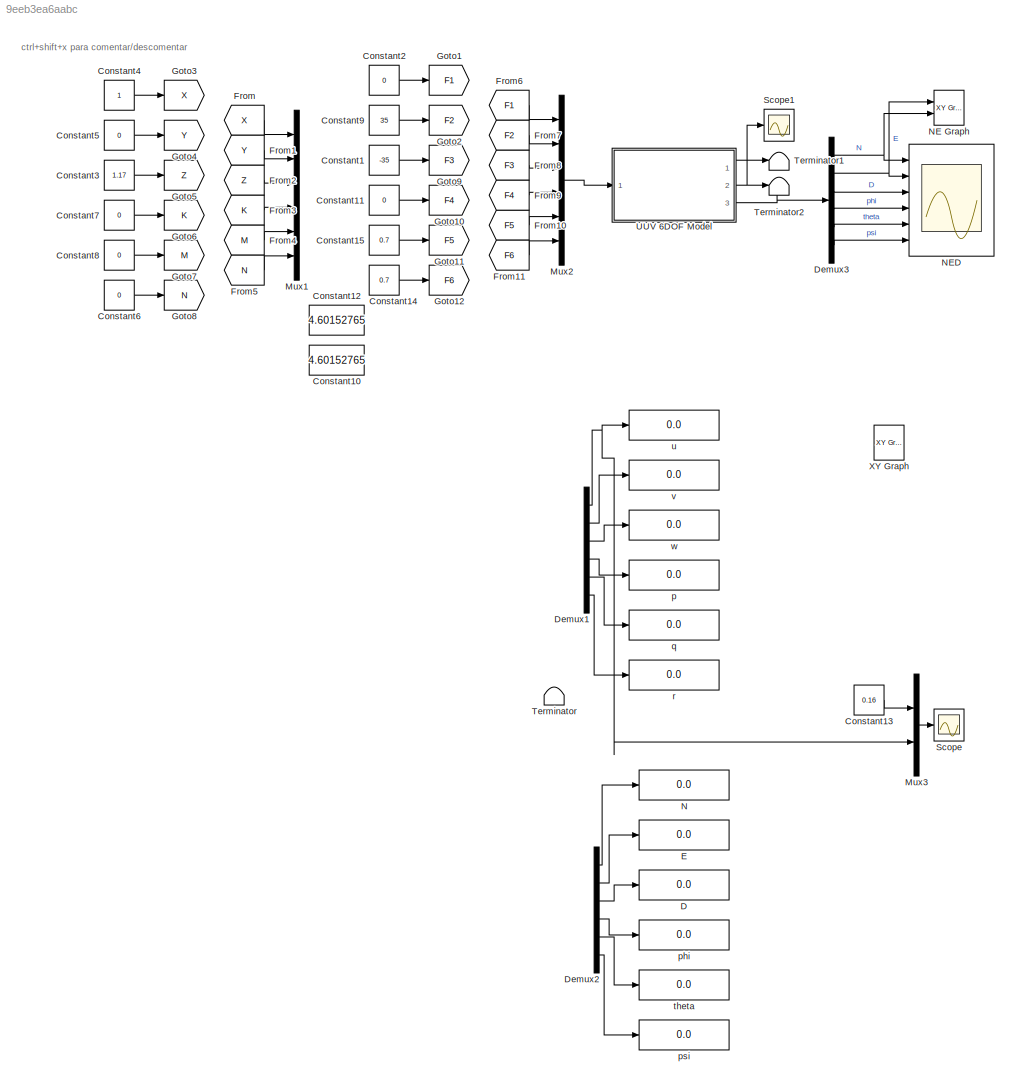
MODEL slx_9eeb3ea6aabc
KIND model
CONFIG AbsTol = auto
CONFIG EnableMultiTasking = off
CONFIG FixedStep = 0.01
CONFIG MaxStep = auto
CONFIG MinStep = auto
CONFIG RelTol = 1e-3
CONFIG SampleTimeConstraint = Unconstrained
CONFIG Solver = VariableStepAuto
CONFIG SolverName = VariableStepAuto
CONFIG StartTime = 0.0
CONFIG StopTime = 20
WORKSPACE source: mxarray member
WORKSPACE NED = [0 0 0 0 0 0]
WORKSPACE NED_dot = [0 0 0 0 0 0]
WORKSPACE a = [0 0 0 0 0 0]
WORKSPACE vel = [0 0 0 0 0 0]
BLOCK [Constant] Constant1
  Value = -35
BLOCK [Constant] Constant10
  Commented = on
  Value = 4.60152765
BLOCK [Constant] Constant11
  Value = 0
BLOCK [Constant] Constant12
  Commented = on
  Value = 4.60152765
BLOCK [Constant] Constant13
  Commented = on
  Value = 0.16
BLOCK [Constant] Constant14
  Value = 0.7
BLOCK [Constant] Constant15
  Value = 0.7
BLOCK [Constant] Constant2
  Value = 0
BLOCK [Constant] Constant3
  Commented = on
  Value = 1.17
BLOCK [Constant] Constant4
  Commented = on
BLOCK [Constant] Constant5
  Commented = on
  Value = 0
BLOCK [Constant] Constant6
  Commented = on
  Value = 0
BLOCK [Constant] Constant7
  Commented = on
  Value = 0
BLOCK [Constant] Constant8
  Commented = on
  Value = 0
BLOCK [Constant] Constant9
  Value = 35
BLOCK [Display] D
  Commented = on
  Decimation = 1
  Ports = [1]
BLOCK [Demux] Demux1
  Commented = on
  Outputs = 6
  Ports = [1, 6]
BLOCK [Demux] Demux2
  Commented = on
  Outputs = 6
  Ports = [1, 6]
BLOCK [Demux] Demux3
  Outputs = 6
  Ports = [1, 6]
BLOCK [Display] E
  Commented = on
  Decimation = 1
  Ports = [1]
BLOCK [From] From
  Commented = on
  GotoTag = X
BLOCK [From] From1
  Commented = on
  GotoTag = Y
BLOCK [From] From10
  GotoTag = F5
BLOCK [From] From11
  GotoTag = F6
BLOCK [From] From2
  Commented = on
  GotoTag = Z
BLOCK [From] From3
  Commented = on
  GotoTag = K
BLOCK [From] From4
  Commented = on
  GotoTag = M
BLOCK [From] From5
  Commented = on
  GotoTag = N
BLOCK [From] From6
  GotoTag = F1
BLOCK [From] From7
  GotoTag = F2
BLOCK [From] From8
  GotoTag = F3
BLOCK [From] From9
  GotoTag = F4
BLOCK [Goto] Goto1
  GotoTag = F1
BLOCK [Goto] Goto10
  GotoTag = F4
BLOCK [Goto] Goto11
  GotoTag = F5
BLOCK [Goto] Goto12
  GotoTag = F6
BLOCK [Goto] Goto2
  GotoTag = F2
BLOCK [Goto] Goto3
  Commented = on
  GotoTag = X
BLOCK [Goto] Goto4
  Commented = on
  GotoTag = Y
BLOCK [Goto] Goto5
  Commented = on
  GotoTag = Z
BLOCK [Goto] Goto6
  Commented = on
  GotoTag = K
BLOCK [Goto] Goto7
  Commented = on
  GotoTag = M
BLOCK [Goto] Goto8
  Commented = on
  GotoTag = N
BLOCK [Goto] Goto9
  GotoTag = F3
BLOCK [Mux] Mux1
  Commented = on
  DisplayOption = bar
  Inputs = 6
  Ports = [6, 1]
BLOCK [Mux] Mux2
  DisplayOption = bar
  Inputs = 6
  Ports = [6, 1]
BLOCK [Mux] Mux3
  Commented = on
  DisplayOption = bar
  Inputs = 2
  Ports = [2, 1]
BLOCK [Display] N
  Commented = on
  Decimation = 1
  Ports = [1]
BLOCK [Reference] NE Graph  REF=simulink/Sinks/XY Graph
  Ports = [2]
  SourceBlock = simulink/Sinks/XY Graph
  SourceProductBaseCode = SL
  SourceType = XY scope.
BLOCK [Scope] NED
  Floating = off
  NumInputPorts = 6
  Ports = [6]
  ScopeSpecificationString = Simulink.scopes.TimeScopeBlockCfg('CurrentConfiguration', extmgr.ConfigurationSet(extmgr.Configuration('Core','General UI',true),extmgr.Configuration('Core','Source UI',true),extmgr.Configuration('Sources','WiredSimulink',true,'DataLoggingVariableName','ScopeData3'),extmgr.Configuration('Visuals','Time Domain',true,'SerializedDisplays',{struct('MinYLimReal','-4.16976','MaxYLimReal','4.84348','YLab...<+1629ch>
BLOCK [Scope] Scope
  Commented = on
  Floating = off
  NumInputPorts = 1
  Ports = [1]
  ScopeSpecificationString = Simulink.scopes.TimeScopeBlockCfg('CurrentConfiguration', extmgr.ConfigurationSet(extmgr.Configuration('Core','General UI',true),extmgr.Configuration('Core','Source UI',true),extmgr.Configuration('Sources','WiredSimulink',true),extmgr.Configuration('Visuals','Time Domain',true,'SerializedDisplays',{struct('MinYLimReal','-0.02','MaxYLimReal','0.18','YLabelReal','','MinYLimMag','0.00000','MaxYLimMag...<+1323ch>
BLOCK [Scope] Scope1
  Floating = off
  NumInputPorts = 1
  Ports = [1]
  ScopeSpecificationString = Simulink.scopes.TimeScopeBlockCfg('CurrentConfiguration', extmgr.ConfigurationSet(extmgr.Configuration('Core','General UI',true),extmgr.Configuration('Core','Source UI',true),extmgr.Configuration('Sources','WiredSimulink',true,'DataLoggingVariableName','ScopeData1'),extmgr.Configuration('Visuals','Time Domain',true,'SerializedDisplays',{struct('MinYLimReal','-2.38546','MaxYLimReal','1.18915','YLab...<+2018ch>
BLOCK [Terminator] Terminator
  Commented = on
BLOCK [Terminator] Terminator1
BLOCK [Terminator] Terminator2
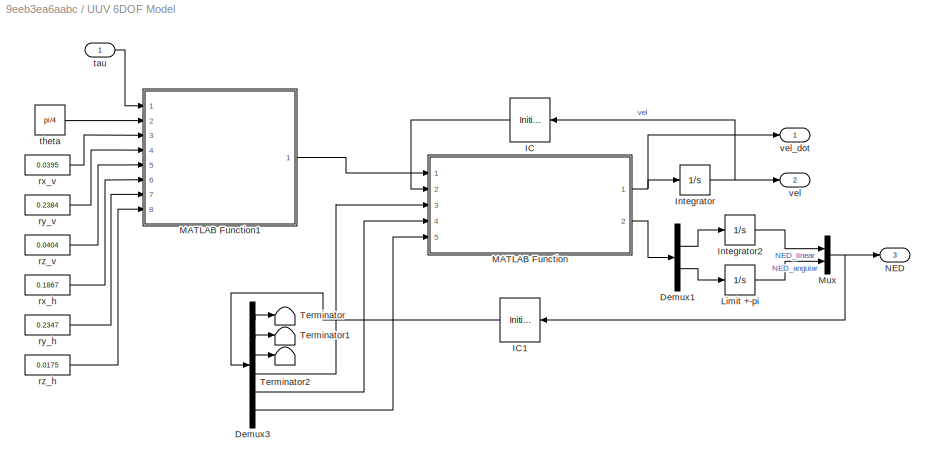
BLOCK [SubSystem] UUV 6DOF Model
  Ports = [1, 3]
  RequestExecContextInheritance = off
BLOCK [Demux] UUV 6DOF Model/Demux1
  Outputs = 2
  Ports = [1, 2]
BLOCK [Demux] UUV 6DOF Model/Demux3
  Outputs = 6
  Ports = [1, 6]
BLOCK [InitialCondition] UUV 6DOF Model/IC
  Value = [0;0;0;0;0;0]
BLOCK [InitialCondition] UUV 6DOF Model/IC1
  Value = [0;0;0;0;0;0]
BLOCK [Integrator] UUV 6DOF Model/Integrator
  Ports = [1, 1]
BLOCK [Integrator] UUV 6DOF Model/Integrator2
  Ports = [1, 1]
BLOCK [Integrator] UUV 6DOF Model/Limit +-pi
  Ports = [1, 1]
  WrapState = on
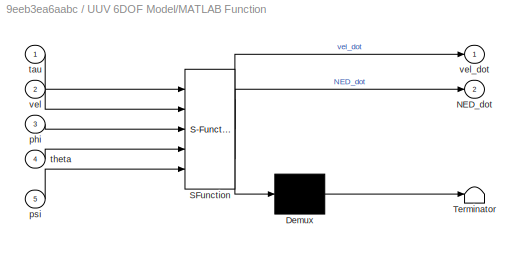
BLOCK [SubSystem] UUV 6DOF Model/MATLAB Function
  ErrorFcn = Stateflow.Translate.translate
  PermitHierarchicalResolution = ExplicitOnly
  Ports = [5, 2]
  RequestExecContextInheritance = off
  SFBlockType = MATLAB Function
  TreatAsAtomicUnit = on
BLOCK [Demux] UUV 6DOF Model/MATLAB Function/ Demux 
  Outputs = 1
  Ports = [1, 1]
BLOCK [S-Function] UUV 6DOF Model/MATLAB Function/ SFunction 
  EnableBusSupport = on
  FunctionName = sf_sfun
  PortCounts = [5 3]
  Ports = [5, 3]
  SFcnIsStateOwnerBlock = off
  SFunctionDeploymentMode = off
  Tag = Stateflow S-Function 2
BLOCK [Terminator] UUV 6DOF Model/MATLAB Function/ Terminator 
BLOCK [Outport] UUV 6DOF Model/MATLAB Function/NED_dot
  Port = 2
BLOCK [Inport] UUV 6DOF Model/MATLAB Function/phi
  Port = 3
BLOCK [Inport] UUV 6DOF Model/MATLAB Function/psi
  Port = 5
BLOCK [Inport] UUV 6DOF Model/MATLAB Function/tau
BLOCK [Inport] UUV 6DOF Model/MATLAB Function/theta
  Port = 4
BLOCK [Inport] UUV 6DOF Model/MATLAB Function/vel
  Port = 2
BLOCK [Outport] UUV 6DOF Model/MATLAB Function/vel_dot
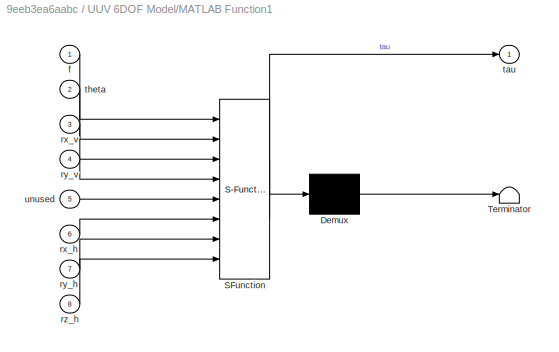
BLOCK [SubSystem] UUV 6DOF Model/MATLAB Function1
  ErrorFcn = Stateflow.Translate.translate
  PermitHierarchicalResolution = ExplicitOnly
  Ports = [8, 1]
  RequestExecContextInheritance = off
  SFBlockType = MATLAB Function
  TreatAsAtomicUnit = on
BLOCK [Demux] UUV 6DOF Model/MATLAB Function1/ Demux 
  Outputs = 1
  Ports = [1, 1]
BLOCK [S-Function] UUV 6DOF Model/MATLAB Function1/ SFunction 
  EnableBusSupport = on
  FunctionName = sf_sfun
  PortCounts = [8 2]
  Ports = [8, 2]
  SFcnIsStateOwnerBlock = off
  SFunctionDeploymentMode = off
  Tag = Stateflow S-Function 1
BLOCK [Terminator] UUV 6DOF Model/MATLAB Function1/ Terminator 
BLOCK [Inport] UUV 6DOF Model/MATLAB Function1/f
BLOCK [Inport] UUV 6DOF Model/MATLAB Function1/rx_h
  Port = 6
BLOCK [Inport] UUV 6DOF Model/MATLAB Function1/rx_v
  Port = 3
BLOCK [Inport] UUV 6DOF Model/MATLAB Function1/ry_h
  Port = 7
BLOCK [Inport] UUV 6DOF Model/MATLAB Function1/ry_v
  Port = 4
BLOCK [Inport] UUV 6DOF Model/MATLAB Function1/rz_h
  Port = 8
BLOCK [Outport] UUV 6DOF Model/MATLAB Function1/tau
BLOCK [Inport] UUV 6DOF Model/MATLAB Function1/theta
  Port = 2
BLOCK [Inport] UUV 6DOF Model/MATLAB Function1/unused
  Port = 5
BLOCK [Mux] UUV 6DOF Model/Mux
  DisplayOption = bar
  Inputs = 2
  Ports = [2, 1]
BLOCK [Outport] UUV 6DOF Model/NED
  Port = 3
BLOCK [Terminator] UUV 6DOF Model/Terminator
BLOCK [Terminator] UUV 6DOF Model/Terminator1
BLOCK [Terminator] UUV 6DOF Model/Terminator2
BLOCK [Constant] UUV 6DOF Model/rx_h
  Value = 0.1867
BLOCK [Constant] UUV 6DOF Model/rx_v
  Value = 0.0395
BLOCK [Constant] UUV 6DOF Model/ry_h
  Value = 0.2347
BLOCK [Constant] UUV 6DOF Model/ry_v
  Value = 0.2384
BLOCK [Constant] UUV 6DOF Model/rz_h
  Value = 0.0175
BLOCK [Constant] UUV 6DOF Model/rz_v
  Value = 0.0404
BLOCK [Inport] UUV 6DOF Model/tau
BLOCK [Constant] UUV 6DOF Model/theta
  Value = pi/4
BLOCK [Outport] UUV 6DOF Model/vel
  Port = 2
BLOCK [Outport] UUV 6DOF Model/vel_dot
BLOCK [Reference] XY Graph  REF=simulink/Sinks/XY Graph
  Commented = on
  Ports = [2]
  SourceBlock = simulink/Sinks/XY Graph
  SourceProductBaseCode = SL
  SourceType = XY scope.
BLOCK [Display] p
  Commented = on
  Decimation = 1
  Ports = [1]
BLOCK [Display] phi
  Commented = on
  Decimation = 1
  Ports = [1]
BLOCK [Display] psi
  Commented = on
  Decimation = 1
  Ports = [1]
BLOCK [Display] q
  Commented = on
  Decimation = 1
  Ports = [1]
BLOCK [Display] r
  Commented = on
  Decimation = 1
  Ports = [1]
BLOCK [Display] theta
  Commented = on
  Decimation = 1
  Ports = [1]
BLOCK [Display] u
  Commented = on
  Decimation = 1
  Ports = [1]
BLOCK [Display] v
  Commented = on
  Decimation = 1
  Ports = [1]
BLOCK [Display] w
  Commented = on
  Decimation = 1
  Ports = [1]
ANNOTATION (root): ctrl+shift+x para comentar/descomentar
LINE Constant11:1 -> Goto10:1
LINE Constant13:1 -> Mux3:1
LINE Constant14:1 -> Goto12:1
LINE Constant15:1 -> Goto11:1
LINE Constant1:1 -> Goto9:1
LINE Constant2:1 -> Goto1:1
LINE Constant3:1 -> Goto5:1
LINE Constant4:1 -> Goto3:1
LINE Constant5:1 -> Goto4:1
LINE Constant6:1 -> Goto8:1
LINE Constant7:1 -> Goto6:1
LINE Constant8:1 -> Goto7:1
LINE Constant9:1 -> Goto2:1
NET Demux1:1 -> Mux3:2, u:1
LINE Demux1:2 -> v:1
LINE Demux1:3 -> w:1
LINE Demux1:4 -> p:1
LINE Demux1:5 -> q:1
LINE Demux1:6 -> r:1
LINE Demux2:1 -> N:1
LINE Demux2:2 -> E:1
LINE Demux2:3 -> D:1
LINE Demux2:4 -> phi:1
LINE Demux2:5 -> theta:1
LINE Demux2:6 -> psi:1
NET Demux3:1 -> NE Graph:2, NED:1
NET Demux3:2 -> NE Graph:1, NED:2
LINE Demux3:3 -> NED:3
LINE Demux3:4 -> NED:4
LINE Demux3:5 -> NED:5
LINE Demux3:6 -> NED:6
LINE From10:1 -> Mux2:5
LINE From11:1 -> Mux2:6
LINE From1:1 -> Mux1:2
LINE From2:1 -> Mux1:3
LINE From3:1 -> Mux1:4
LINE From4:1 -> Mux1:5
LINE From5:1 -> Mux1:6
LINE From6:1 -> Mux2:1
LINE From7:1 -> Mux2:2
LINE From8:1 -> Mux2:3
LINE From9:1 -> Mux2:4
LINE From:1 -> Mux1:1
LINE Mux2:1 -> UUV 6DOF Model:1
LINE Mux3:1 -> Scope:1
LINE UUV 6DOF Model/Demux1:1 -> UUV 6DOF Model/Integrator2:1
LINE UUV 6DOF Model/Demux1:2 -> UUV 6DOF Model/Limit +-pi:1
LINE UUV 6DOF Model/Demux3:1 -> UUV 6DOF Model/Terminator:1
LINE UUV 6DOF Model/Demux3:2 -> UUV 6DOF Model/Terminator1:1
LINE UUV 6DOF Model/Demux3:3 -> UUV 6DOF Model/Terminator2:1
LINE UUV 6DOF Model/Demux3:4 -> UUV 6DOF Model/MATLAB Function:3
LINE UUV 6DOF Model/Demux3:5 -> UUV 6DOF Model/MATLAB Function:4
LINE UUV 6DOF Model/Demux3:6 -> UUV 6DOF Model/MATLAB Function:5
LINE UUV 6DOF Model/IC1:1 -> UUV 6DOF Model/Demux3:1
LINE UUV 6DOF Model/IC:1 -> UUV 6DOF Model/MATLAB Function:2
LINE UUV 6DOF Model/Integrator2:1 -> UUV 6DOF Model/Mux:1
NET UUV 6DOF Model/Integrator:1 -> UUV 6DOF Model/IC:1, UUV 6DOF Model/vel:1
LINE UUV 6DOF Model/Limit +-pi:1 -> UUV 6DOF Model/Mux:2
LINE UUV 6DOF Model/MATLAB Function1:1 -> UUV 6DOF Model/MATLAB Function:1
NET UUV 6DOF Model/MATLAB Function:1 -> UUV 6DOF Model/Integrator:1, UUV 6DOF Model/vel_dot:1
LINE UUV 6DOF Model/MATLAB Function:2 -> UUV 6DOF Model/Demux1:1
NET UUV 6DOF Model/Mux:1 -> UUV 6DOF Model/IC1:1, UUV 6DOF Model/NED:1
LINE UUV 6DOF Model/rx_h:1 -> UUV 6DOF Model/MATLAB Function1:6
LINE UUV 6DOF Model/rx_v:1 -> UUV 6DOF Model/MATLAB Function1:3
LINE UUV 6DOF Model/ry_h:1 -> UUV 6DOF Model/MATLAB Function1:7
LINE UUV 6DOF Model/ry_v:1 -> UUV 6DOF Model/MATLAB Function1:4
LINE UUV 6DOF Model/rz_h:1 -> UUV 6DOF Model/MATLAB Function1:8
LINE UUV 6DOF Model/rz_v:1 -> UUV 6DOF Model/MATLAB Function1:5
LINE UUV 6DOF Model/tau:1 -> UUV 6DOF Model/MATLAB Function1:1
LINE UUV 6DOF Model/theta:1 -> UUV 6DOF Model/MATLAB Function1:2
LINE UUV 6DOF Model:1 -> Terminator1:1
NET UUV 6DOF Model:2 -> Scope1:1, Terminator2:1
LINE UUV 6DOF Model:3 -> Demux3:1
note: NET lines group one-source signal fan-out (src -> all destinations, sorted); 1:1 wires keep LINE
CHART UUV 6DOF Model/MATLAB Function1 states=1 transitions=1
  STATE_LABEL 'eML_blk_kernel()'
  STATE_LABEL "SCRIPT:\nfunction tau = tau_conversion(f, theta, rx_v, ry_v, ~, rx_h, ry_h, rz_h)\ntau = [0 0 0 0 0 0].';\ntau(1) = (f(1)+f(2)-f(3)-f(4))*cos(theta);\ntau(2) = (-f(1)+f(2)-f(3)+f(4))*sin(theta);\ntau(3) = -(f(5)+f(6));\ntau(4) = (f(6)-f(5))*ry_v + (-f(1)+f(2)-f(3)+f(4))*sin(theta)*rz_h;\ntau(5) = (f(6)-f(5))*rx_v + (-f(1)-f(2)+f(3)+f(4))*cos(theta)*rz_h;\ntau(6) = (-f(1)+f(2)+f(3)-f(4))*(rx_h*sin(theta)+r...<+16ch>"
CHART UUV 6DOF Model/MATLAB Function states=1 transitions=1
  STATE_LABEL 'eML_blk_kernel()'
  STATE_LABEL "SCRIPT:\nfunction [vel_dot,NED_dot]= UUV_forward_dynamics(tau,vel,phi,theta,psi)\n% Skew symmetric matrix\nS = @(s) [0    -s(3) s(2);\n          s(3) 0     -s(1);\n          -s(2) s(1)  0    ];  \n\n% Vehicle parameters\nm = 24;\nvol = 0.02306187;\nW = m*9.81;\nB = W*1.005; %1000*9.81*vol;\n\nr_g = [0 0 0].';    % Distance from origin to center of mass\nr_b = [0 0 -0.10726].';    % Distance from origin to cente...<+2822ch>"
CHART  states=0 transitions=0
CHART  states=0 transitions=0
